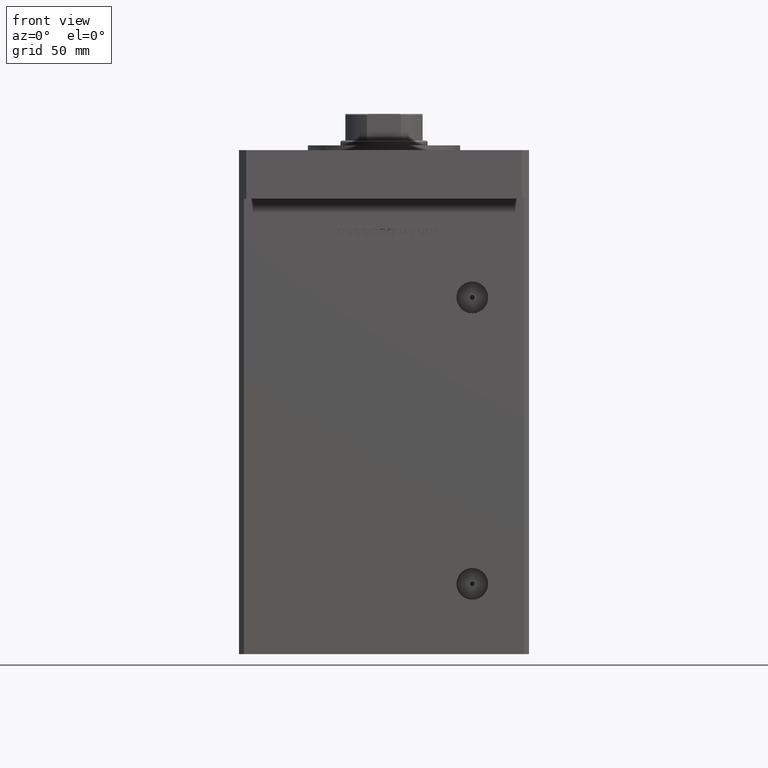
[diagram: clean part render]
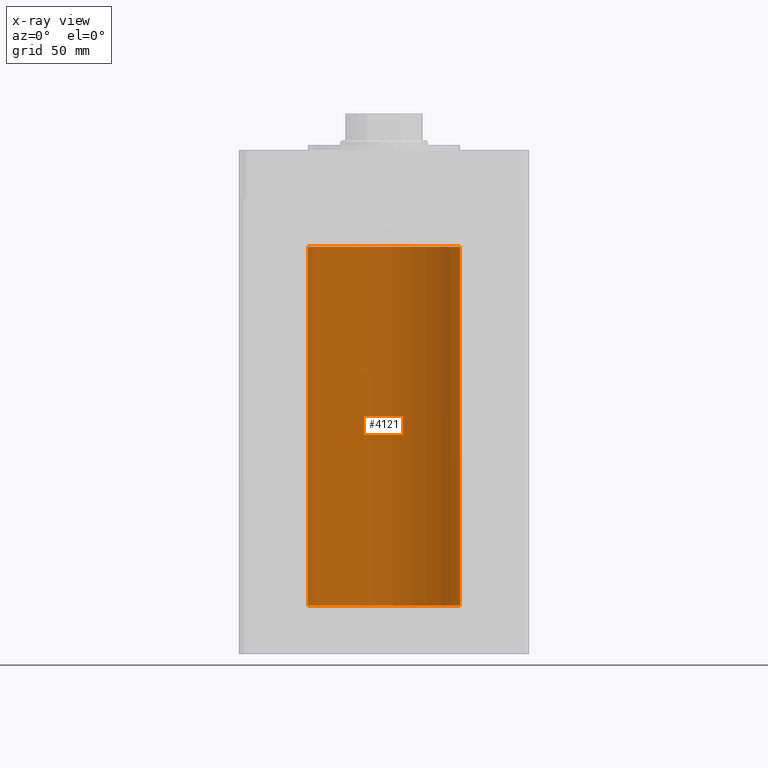
[diagram: x-ray — body ghosted, one internal face saturated and labeled with its STEP entity id]
A machine part, front view, then the same camera in x-ray: the body is ghosted and one INTERNAL B-rep face — a face not visible from any outside direction — is saturated and labeled: STEP entity #4121.
In plain terms, the highlighted cylindrical surface (partial cylindrical patch) has radius 31.5 mm, axis along (-0, -0, -1).
Its self-contained STEP definition (entity closure, byte-faithful):
#283 = DIRECTION ( 'NONE',  ( 1.000000000000000000, 0.000000000000000000, 0.000000000000000000 ) ) ;
#790 = VERTEX_POINT ( 'NONE', #36222 ) ;
#4121 = ADVANCED_FACE ( 'NONE', ( #14234 ), #34626, .F. ) ;
#5441 = ORIENTED_EDGE ( 'NONE', *, *, #29061, .F. ) ;
#7193 = VERTEX_POINT ( 'NONE', #43912 ) ;
#8088 = DIRECTION ( 'NONE',  ( -0.000000000000000000, -0.000000000000000000, -1.000000000000000000 ) ) ;
#8752 = ORIENTED_EDGE ( 'NONE', *, *, #47299, .F. ) ;
#10342 = ORIENTED_EDGE ( 'NONE', *, *, #30073, .T. ) ;
#10689 = DIRECTION ( 'NONE',  ( -0.000000000000000000, -0.000000000000000000, -1.000000000000000000 ) ) ;
#11893 = AXIS2_PLACEMENT_3D ( 'NONE', #29393, #20976, #283 ) ;
#14234 = FACE_OUTER_BOUND ( 'NONE', #28969, .T. ) ;
#16243 = CARTESIAN_POINT ( 'NONE',  ( -31.50000000000000000, 0.000000000000000000, 148.5000000000000000 ) ) ;
#19737 = AXIS2_PLACEMENT_3D ( 'NONE', #26495, #10689, #43335 ) ;
#20655 = LINE ( 'NONE', #37497, #21602 ) ;
#20976 = DIRECTION ( 'NONE',  ( -0.000000000000000000, 0.000000000000000000, 1.000000000000000000 ) ) ;
#21602 = VECTOR ( 'NONE', #37230, 1000.000000000000000 ) ;
#23489 = EDGE_CURVE ( 'NONE', #39369, #790, #51846, .T. ) ;
#26495 = CARTESIAN_POINT ( 'NONE',  ( 0.000000000000000000, 0.000000000000000000, 148.5000000000000000 ) ) ;
#28969 = EDGE_LOOP ( 'NONE', ( #5441, #31281, #10342, #8752 ) ) ;
#29061 = EDGE_CURVE ( 'NONE', #39369, #7193, #20655, .T. ) ;
#29393 = CARTESIAN_POINT ( 'NONE',  ( 0.000000000000000000, 0.000000000000000000, 148.5000000000000000 ) ) ;
#30073 = EDGE_CURVE ( 'NONE', #790, #37607, #49153, .T. ) ;
#30221 = CIRCLE ( 'NONE', #44125, 31.50000000000000000 ) ;
#30903 = CARTESIAN_POINT ( 'NONE',  ( -31.50000000000000000, 0.000000000000000000, 0.000000000000000000 ) ) ;
#31281 = ORIENTED_EDGE ( 'NONE', *, *, #23489, .T. ) ;
#31635 = CARTESIAN_POINT ( 'NONE',  ( 0.000000000000000000, 0.000000000000000000, 0.000000000000000000 ) ) ;
#34626 = CYLINDRICAL_SURFACE ( 'NONE', #19737, 31.50000000000000000 ) ;
#36222 = CARTESIAN_POINT ( 'NONE',  ( -31.50000000000000000, 0.000000000000000000, 148.5000000000000000 ) ) ;
#36253 = DIRECTION ( 'NONE',  ( 1.000000000000000000, 0.000000000000000000, 0.000000000000000000 ) ) ;
#37230 = DIRECTION ( 'NONE',  ( -0.000000000000000000, -0.000000000000000000, -1.000000000000000000 ) ) ;
#37497 = CARTESIAN_POINT ( 'NONE',  ( 31.50000000000000000, 3.857637417314162689E-15, 148.5000000000000000 ) ) ;
#37607 = VERTEX_POINT ( 'NONE', #30903 ) ;
#39369 = VERTEX_POINT ( 'NONE', #51633 ) ;
#40621 = VECTOR ( 'NONE', #8088, 1000.000000000000000 ) ;
#43335 = DIRECTION ( 'NONE',  ( -1.000000000000000000, 0.000000000000000000, 0.000000000000000000 ) ) ;
#43912 = CARTESIAN_POINT ( 'NONE',  ( 31.50000000000000000, 3.857637417314162689E-15, 0.000000000000000000 ) ) ;
#44125 = AXIS2_PLACEMENT_3D ( 'NONE', #31635, #48228, #36253 ) ;
#47299 = EDGE_CURVE ( 'NONE', #7193, #37607, #30221, .T. ) ;
#48228 = DIRECTION ( 'NONE',  ( -0.000000000000000000, 0.000000000000000000, 1.000000000000000000 ) ) ;
#49153 = LINE ( 'NONE', #16243, #40621 ) ;
#51633 = CARTESIAN_POINT ( 'NONE',  ( 31.50000000000000000, 3.857637417314162689E-15, 148.5000000000000000 ) ) ;
#51846 = CIRCLE ( 'NONE', #11893, 31.50000000000000000 ) ;